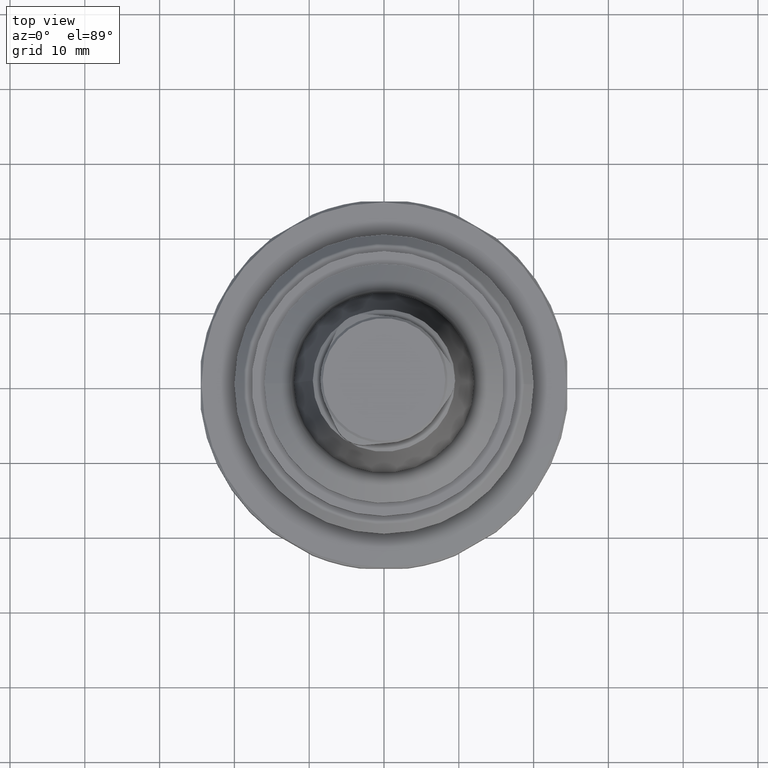
[diagram: clean part render]
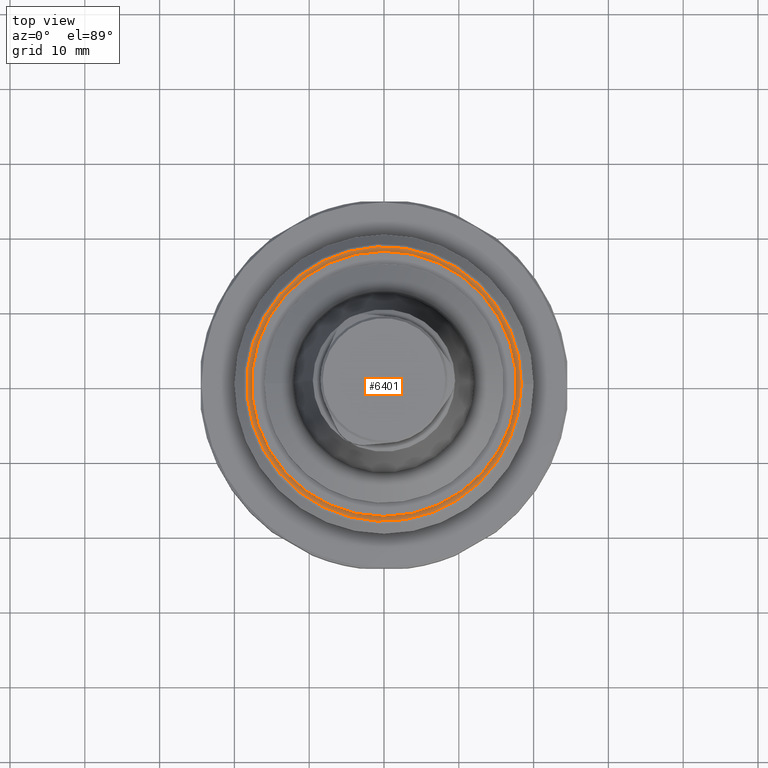
[diagram: same view with one face highlighted and labeled with its STEP entity id]
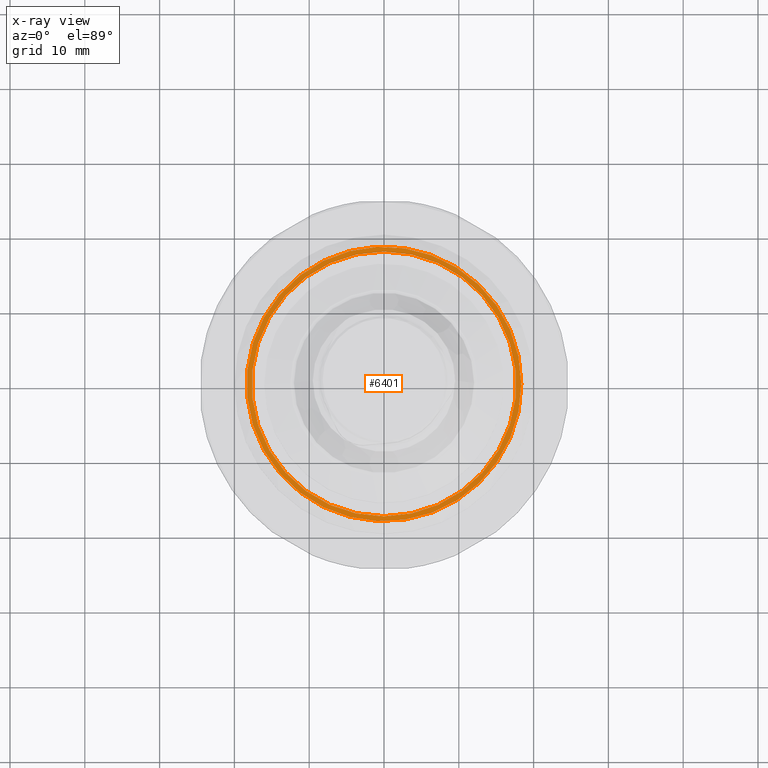
[diagram: x-ray of the same camera — body ghosted, the highlighted face saturated]
A machine part, top view. The second image highlights one B-rep face of the part: STEP entity #6401.
The next image is the same camera in x-ray: the body ghosted, the highlighted face saturated — about 0% of this face is hidden behind the body in this view.
In plain terms, the highlighted planar face has unit normal (-0, 0, -1).
Its self-contained STEP definition (entity closure, byte-faithful):
#6401 = ADVANCED_FACE('',(#6402,#6441),#6415,.F.);
#6402 = FACE_BOUND('',#6403,.T.);
#6403 = EDGE_LOOP('',(#6404));
#6404 = ORIENTED_EDGE('',*,*,#6405,.F.);
#6405 = EDGE_CURVE('',#6406,#6406,#6408,.T.);
#6406 = VERTEX_POINT('',#6407);
#6407 = CARTESIAN_POINT('',(1.667094973248E-015,-17.7,4.4));
#6408 = SURFACE_CURVE('',#6409,(#6414,#6430),.PCURVE_S1.);
#6409 = CIRCLE('',#6410,17.7);
#6410 = AXIS2_PLACEMENT_3D('',#6411,#6412,#6413);
#6411 = CARTESIAN_POINT('',(-7.816894462642E-018,-1.594811364115E-015,
    4.4));
#6412 = DIRECTION('',(2.605631487548E-018,2.286054209011E-016,1.));
#6413 = DIRECTION('',(9.462778913617E-017,-1.,2.286054209011E-016));
#6414 = PCURVE('',#6415,#6420);
#6415 = PLANE('',#6416);
#6416 = AXIS2_PLACEMENT_3D('',#6417,#6418,#6419);
#6417 = CARTESIAN_POINT('',(2.888894916581E-031,-9.089951014118E-016,4.4
    ));
#6418 = DIRECTION('',(-2.605631487548E-018,5.607991387788E-033,-1.));
#6419 = DIRECTION('',(1.,-2.440810140808E-016,-2.605631487548E-018));
#6420 = DEFINITIONAL_REPRESENTATION('',(#6421),#6429);
#6421 = ( BOUNDED_CURVE() B_SPLINE_CURVE(2,(#6422,#6423,#6424,#6425,
#6426,#6427,#6428),.UNSPECIFIED.,.F.,.F.) B_SPLINE_CURVE_WITH_KNOTS((1,2
    ,2,2,2,1),(-2.094395102393,0.E+000,2.094395102393,4.188790204786,
6.28318530718,8.377580409573),.UNSPECIFIED.) CURVE() 
GEOMETRIC_REPRESENTATION_ITEM() RATIONAL_B_SPLINE_CURVE((1.,0.5,1.,0.5,
1.,0.5,1.)) REPRESENTATION_ITEM('') );
#6422 = CARTESIAN_POINT('',(5.987328922478E-015,17.7));
#6423 = CARTESIAN_POINT('',(30.657299293969,17.7));
#6424 = CARTESIAN_POINT('',(15.328649646985,-8.85));
#6425 = CARTESIAN_POINT('',(-7.662858859362E-015,-35.4));
#6426 = CARTESIAN_POINT('',(-15.32864964698,-8.85));
#6427 = CARTESIAN_POINT('',(-30.65729929396,17.7));
#6428 = CARTESIAN_POINT('',(5.987328922478E-015,17.7));
#6429 = ( GEOMETRIC_REPRESENTATION_CONTEXT(2) 
PARAMETRIC_REPRESENTATION_CONTEXT() REPRESENTATION_CONTEXT('2D SPACE',''
  ) );
#6430 = PCURVE('',#6431,#6436);
#6431 = CYLINDRICAL_SURFACE('',#6432,17.7);
#6432 = AXIS2_PLACEMENT_3D('',#6433,#6434,#6435);
#6433 = CARTESIAN_POINT('',(-3.908447231321E-018,-1.251903232764E-015,
    5.9));
#6434 = DIRECTION('',(-2.605631487548E-018,-2.286054209011E-016,-1.));
#6435 = DIRECTION('',(1.,8.898993783925E-017,-2.605631487548E-018));
#6436 = DEFINITIONAL_REPRESENTATION('',(#6437),#6440);
#6437 = B_SPLINE_CURVE_WITH_KNOTS('',1,(#6438,#6439),.UNSPECIFIED.,.F.,
  .F.,(2,2),(0.E+000,6.28318530718),.PIECEWISE_BEZIER_KNOTS.);
#6438 = CARTESIAN_POINT('',(7.853981633974,1.5));
#6439 = CARTESIAN_POINT('',(1.570796326795,1.5));
#6440 = ( GEOMETRIC_REPRESENTATION_CONTEXT(2) 
PARAMETRIC_REPRESENTATION_CONTEXT() REPRESENTATION_CONTEXT('2D SPACE',''
  ) );
#6441 = FACE_BOUND('',#6442,.T.);
#6442 = EDGE_LOOP('',(#6443));
#6443 = ORIENTED_EDGE('',*,*,#6444,.F.);
#6444 = EDGE_CURVE('',#6445,#6445,#6447,.T.);
#6445 = VERTEX_POINT('',#6446);
#6446 = CARTESIAN_POINT('',(18.352471029242,-5.388484841118E-015,4.4));
#6447 = SURFACE_CURVE('',#6448,(#6453,#6460),.PCURVE_S1.);
#6448 = CIRCLE('',#6449,18.352471029242);
#6449 = AXIS2_PLACEMENT_3D('',#6450,#6451,#6452);
#6450 = CARTESIAN_POINT('',(2.888894916581E-031,-9.089951014118E-016,4.4
    ));
#6451 = DIRECTION('',(-2.605631487548E-018,5.607991387788E-033,-1.));
#6452 = DIRECTION('',(1.,-2.440810140808E-016,-2.605631487548E-018));
#6453 = PCURVE('',#6415,#6454);
#6454 = DEFINITIONAL_REPRESENTATION('',(#6455),#6459);
#6455 = CIRCLE('',#6456,18.352471029242);
#6456 = AXIS2_PLACEMENT_2D('',#6457,#6458);
#6457 = CARTESIAN_POINT('',(0.E+000,-0.E+000));
#6458 = DIRECTION('',(1.,1.295521594224E-050));
#6459 = ( GEOMETRIC_REPRESENTATION_CONTEXT(2) 
PARAMETRIC_REPRESENTATION_CONTEXT() REPRESENTATION_CONTEXT('2D SPACE',''
  ) );
#6460 = PCURVE('',#6461,#6466);
#6461 = TOROIDAL_SURFACE('',#6462,18.351471029242,0.6);
#6462 = AXIS2_PLACEMENT_3D('',#6463,#6464,#6465);
#6463 = CARTESIAN_POINT('',(-1.563376721167E-018,-9.089951014118E-016,
    3.800000833334));
#6464 = DIRECTION('',(-2.605631487548E-018,5.607991387788E-033,-1.));
#6465 = DIRECTION('',(1.,-2.440810140808E-016,-2.605631487548E-018));
#6466 = DEFINITIONAL_REPRESENTATION('',(#6467),#6493);
#6467 = B_SPLINE_CURVE_WITH_KNOTS('',3,(#6468,#6469,#6470,#6471,#6472,
    #6473,#6474,#6475,#6476,#6477,#6478,#6479,#6480,#6481,#6482,#6483,
    #6484,#6485,#6486,#6487,#6488,#6489,#6490,#6491,#6492),
  .UNSPECIFIED.,.F.,.F.,(4,1,1,1,1,1,1,1,1,1,1,1,1,1,1,1,1,1,1,1,1,1,4),
  (0.E+000,0.285599332145,0.571198664289,0.856797996434,1.142397328578,
    1.427996660723,1.713595992867,1.999195325012,2.284794657156,
    2.570393989301,2.855993321445,3.14159265359,3.427191985734,
    3.712791317879,3.998390650023,4.283989982168,4.569589314312,
    4.855188646457,5.140787978601,5.426387310746,5.711986642891,
    5.997585975035,6.28318530718),.QUASI_UNIFORM_KNOTS.);
#6468 = CARTESIAN_POINT('',(0.E+000,4.714055647823));
#6469 = CARTESIAN_POINT('',(9.519977738151E-002,4.714055647823));
#6470 = CARTESIAN_POINT('',(0.285599332145,4.714055647823));
#6471 = CARTESIAN_POINT('',(0.571198664289,4.714055647823));
#6472 = CARTESIAN_POINT('',(0.856797996434,4.714055647823));
#6473 = CARTESIAN_POINT('',(1.142397328578,4.714055647823));
#6474 = CARTESIAN_POINT('',(1.427996660723,4.714055647823));
#6475 = CARTESIAN_POINT('',(1.713595992867,4.714055647823));
#6476 = CARTESIAN_POINT('',(1.999195325012,4.714055647823));
#6477 = CARTESIAN_POINT('',(2.284794657156,4.714055647823));
#6478 = CARTESIAN_POINT('',(2.570393989301,4.714055647823));
#6479 = CARTESIAN_POINT('',(2.855993321445,4.714055647823));
#6480 = CARTESIAN_POINT('',(3.14159265359,4.714055647823));
#6481 = CARTESIAN_POINT('',(3.427191985734,4.714055647823));
#6482 = CARTESIAN_POINT('',(3.712791317879,4.714055647823));
#6483 = CARTESIAN_POINT('',(3.998390650023,4.714055647823));
#6484 = CARTESIAN_POINT('',(4.283989982168,4.714055647823));
#6485 = CARTESIAN_POINT('',(4.569589314312,4.714055647823));
#6486 = CARTESIAN_POINT('',(4.855188646457,4.714055647823));
#6487 = CARTESIAN_POINT('',(5.140787978601,4.714055647823));
#6488 = CARTESIAN_POINT('',(5.426387310746,4.714055647823));
#6489 = CARTESIAN_POINT('',(5.711986642891,4.714055647823));
#6490 = CARTESIAN_POINT('',(5.997585975035,4.714055647823));
#6491 = CARTESIAN_POINT('',(6.187985529798,4.714055647823));
#6492 = CARTESIAN_POINT('',(6.28318530718,4.714055647823));
#6493 = ( GEOMETRIC_REPRESENTATION_CONTEXT(2) 
PARAMETRIC_REPRESENTATION_CONTEXT() REPRESENTATION_CONTEXT('2D SPACE',''
  ) );